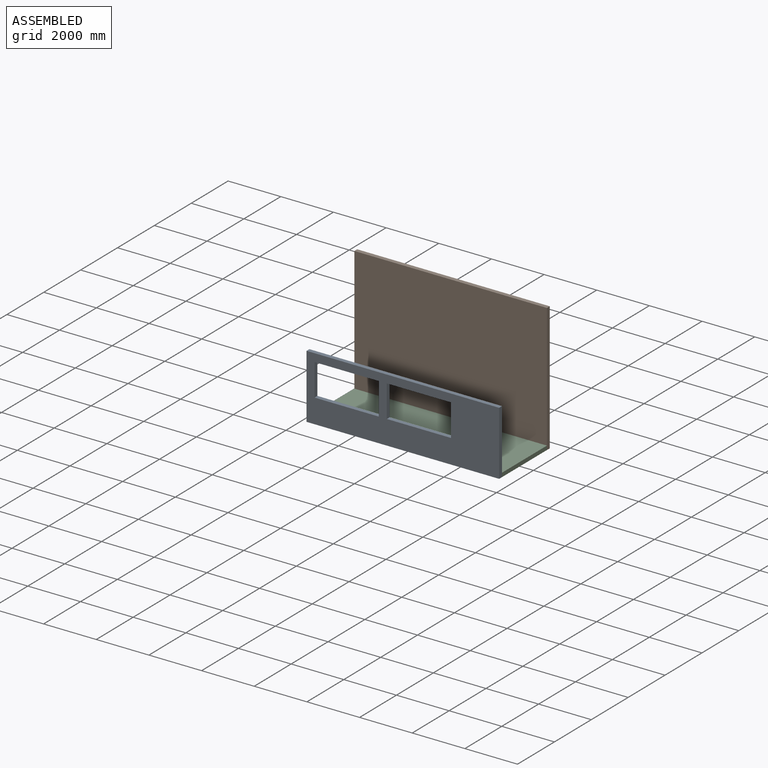
[diagram: assembled view]
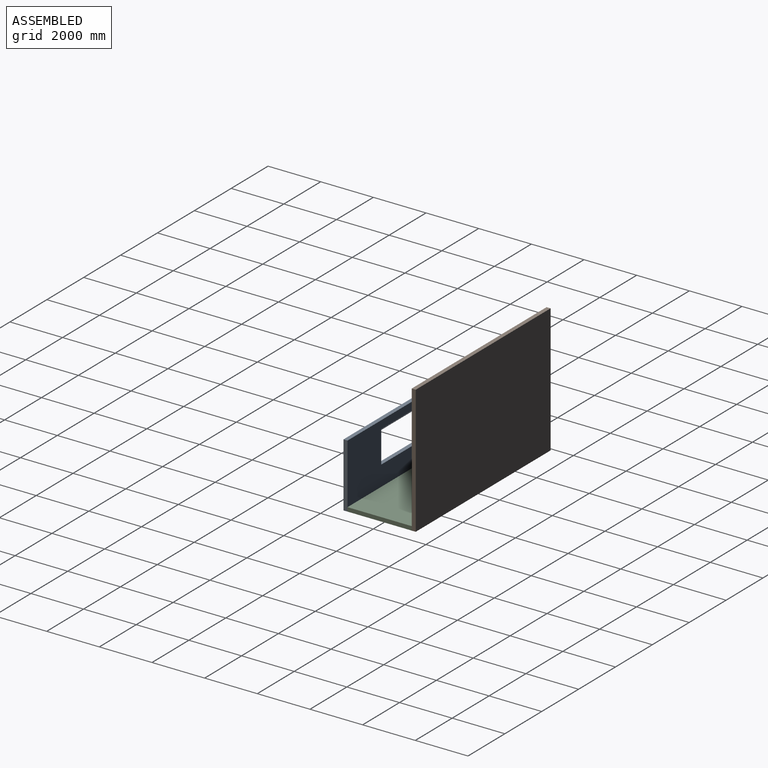
[diagram: assembled view, second angle]
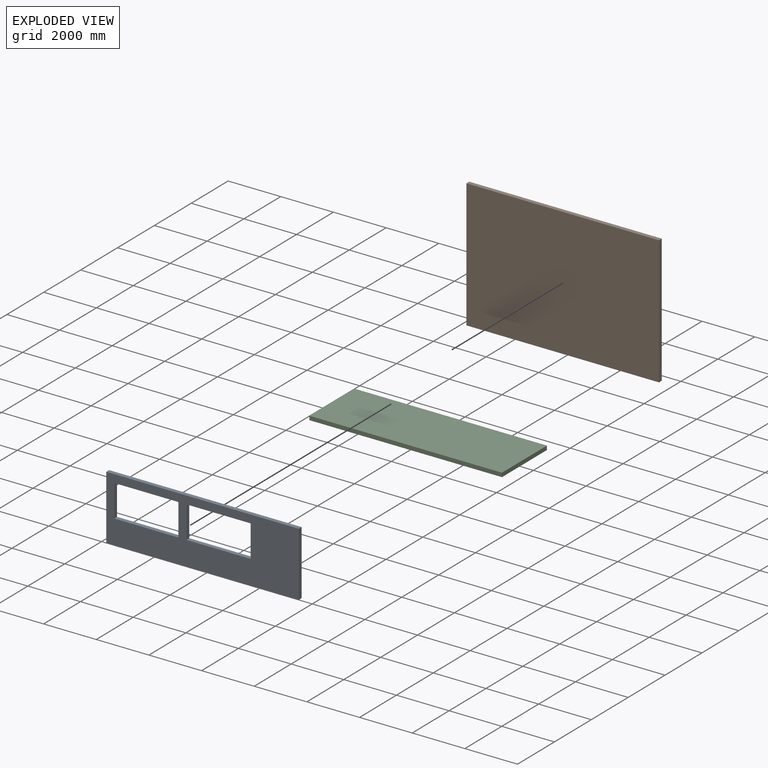
[diagram: exploded view]
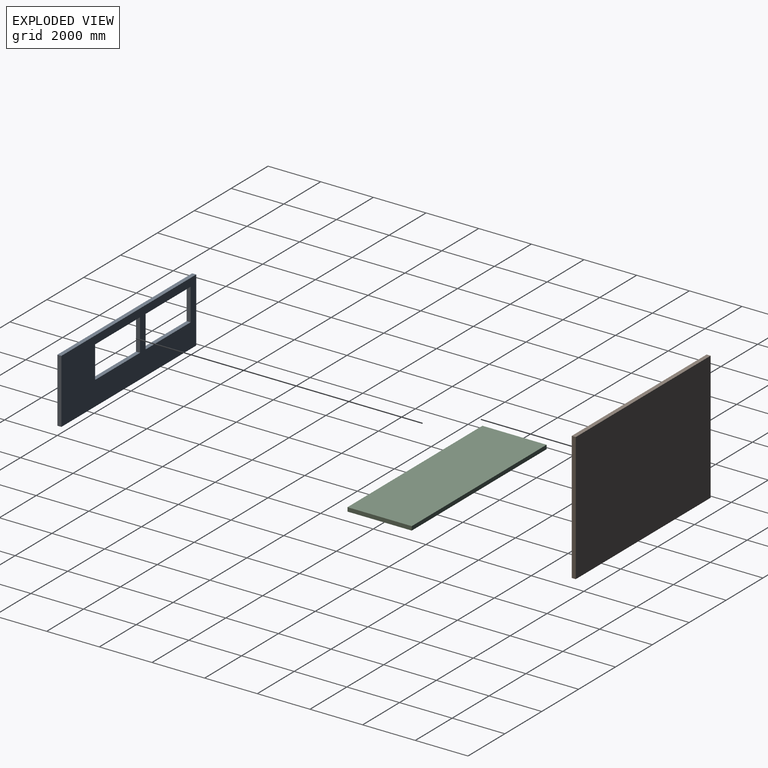
[diagram: exploded view, second angle]
ASSEMBLY  parts=3 mates=5
PART A: 14 faces, bbox 7315.2x152.4x2438.4 mm
  f0: plane 7315.2x152.4mm, normal (0,0,1), area 1114836.5mm2, adj f1,f3,f4,f5
  f1: plane 2438.4x152.4mm, normal (-1,0,0), area 371612.2mm2, adj f0,f2,f4,f5
  f2: plane 7315.2x152.4mm, normal (0,0,-1), area 1114836.5mm2, adj f1,f3,f4,f5
  f3: plane 2438.4x152.4mm, normal (1,0,0), area 371612.2mm2, adj f0,f2,f4,f5
  f4: plane 7315.2x2438.4mm, normal (0,-1,0), area 11891589.1mm2, adj f0,f1,f2,f3,f6,f7,f8,f9
  f5: plane 7315.2x2438.4mm, normal (0,1,0), area 11891589.1mm2, adj f0,f1,f2,f3,f6,f7,f8,f9
  f6: plane 1219.2x152.4mm, normal (1,0,0), area 185806.1mm2, adj f4,f5,f7,f9
  f7: plane 2438.4x152.4mm, normal (0,0,1), area 371612.2mm2, adj f4,f5,f6,f8
  f8: plane 1219.2x152.4mm, normal (-1,0,0), area 185806.1mm2, adj f4,f5,f7,f9
  f9: plane 2438.4x152.4mm, normal (0,0,-1), area 371612.2mm2, adj f4,f5,f6,f8
  f10: plane 1219.2x152.4mm, normal (1,0,0), area 185806.1mm2, adj f4,f5,f11,f13
  f11: plane 2438.4x152.4mm, normal (0,0,1), area 371612.2mm2, adj f4,f5,f10,f12
  f12: plane 1219.2x152.4mm, normal (-1,0,0), area 185806.1mm2, adj f4,f5,f11,f13
  f13: plane 2438.4x152.4mm, normal (0,0,-1), area 371612.2mm2, adj f4,f5,f10,f12
PART B: 6 faces, bbox 4876.8x152.4x7315.2 mm
  f0: plane 4876.8x152.4mm, normal (0,0,1), area 743224.3mm2, adj f1,f3,f4,f5
  f1: plane 7315.2x152.4mm, normal (-1,0,0), area 1114836.5mm2, adj f0,f2,f4,f5
  f2: plane 4876.8x152.4mm, normal (0,0,-1), area 743224.3mm2, adj f1,f3,f4,f5
  f3: plane 7315.2x152.4mm, normal (1,0,0), area 1114836.5mm2, adj f0,f2,f4,f5
  f4: plane 7315.2x4876.8mm, normal (0,-1,0), area 35674767.4mm2, adj f0,f1,f2,f3
  f5: plane 7315.2x4876.8mm, normal (0,1,0), area 35674767.4mm2, adj f0,f1,f2,f3
PART C: 6 faces, bbox 7315.2x2438.4x152.4 mm
  f0: plane 7315.2x2438.4mm, normal (0,0,1), area 17837383.7mm2, adj f1,f3,f4,f5
  f1: plane 2438.4x152.4mm, normal (-1,0,0), area 371612.2mm2, adj f0,f2,f4,f5
  f2: plane 7315.2x2438.4mm, normal (0,0,-1), area 17837383.7mm2, adj f1,f3,f4,f5
  f3: plane 2438.4x152.4mm, normal (1,0,0), area 371612.2mm2, adj f0,f2,f4,f5
  f4: plane 7315.2x152.4mm, normal (0,1,0), area 1114836.5mm2, adj f0,f1,f2,f3
  f5: plane 7315.2x152.4mm, normal (0,-1,0), area 1114836.5mm2, adj f0,f1,f2,f3
PLACE A t=(-3658.25,-1215.94,-70.74)mm
PLACE B rot(axis=(0,1,0),90deg) t=(-3658.25,1374.86,4806.06)mm
PLACE C t=(-3658.25,-1215.94,-70.74)mm fixed
MATE planar A.f5 <-> C.f5  axis (0,1,0) through (380.35,-1215.94,996.06)mm
MATE planar B.f3 <-> C.f2  axis (0,0,-1) through (-0.65,1298.66,-70.74)mm
MATE planar B.f0 <-> C.f3  axis (1,0,0) through (3656.95,1298.66,2367.66)mm
MATE planar B.f4 <-> C.f4  axis (0,-1,0) through (-0.65,1222.46,2367.66)mm
MATE planar A.f2 <-> C.f2  axis (0,0,-1) through (-0.65,-1292.14,-70.74)mm
